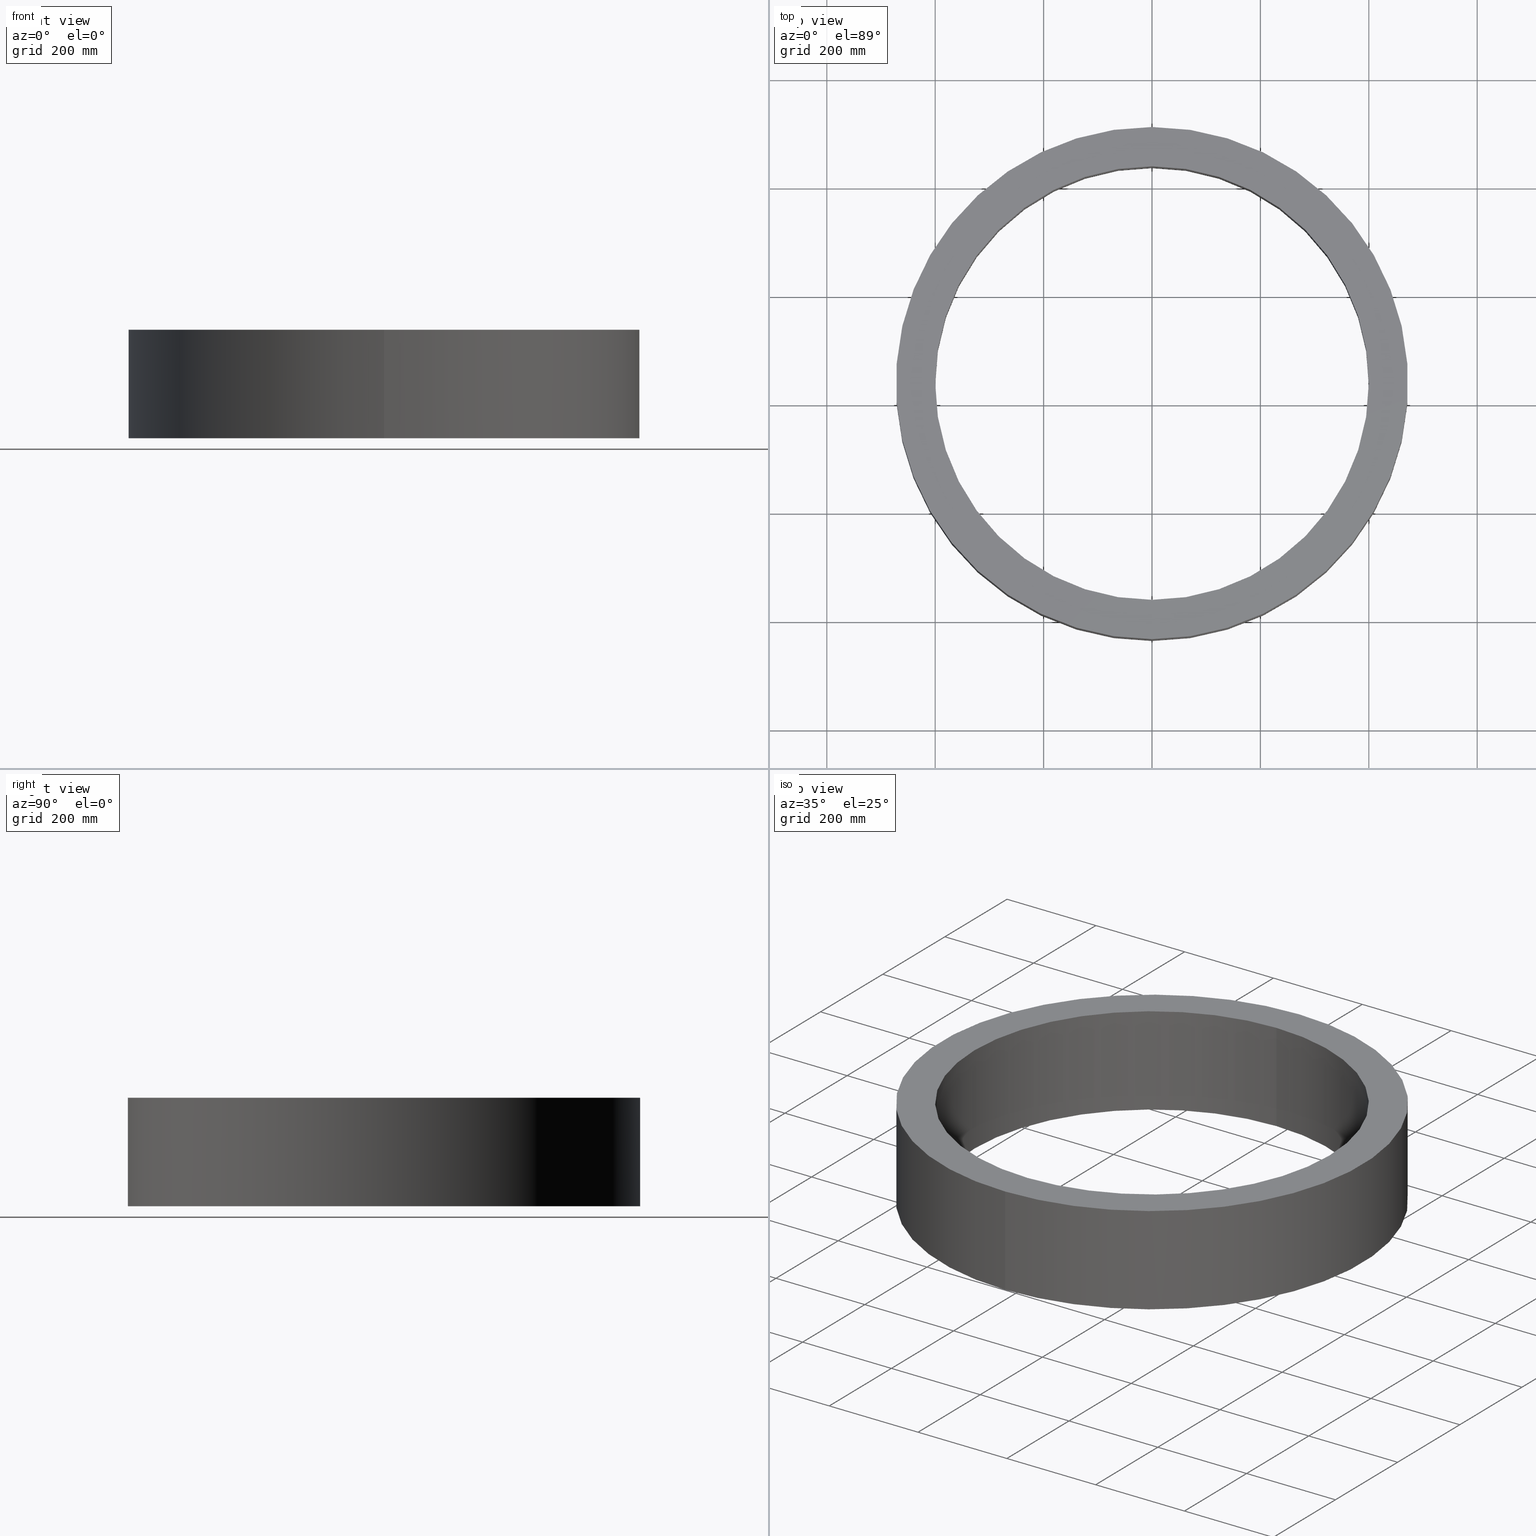
[diagram: canonical four-view strip — front | top / right | iso, engineering-drawing reading convention]
A machine part, canonical four-view strip (front | top / right | iso — engineering-drawing reading convention). The complete STEP part file that produces these views, byte-faithful:
ISO-10303-21;
HEADER;
FILE_DESCRIPTION (( 'STEP AP203' ),
    '1' );
FILE_NAME ('Rudus 6780200 Korotusrengas kaukol�mp� 800x200.step',
    '2020-03-16T06:44:18',
    ( '' ),
    ( '' ),
    'SwSTEP 2.0',
    'SolidWorks 2019',
    '' );
FILE_SCHEMA (( 'CONFIG_CONTROL_DESIGN' ));
ENDSEC;

DATA;
#1 = DIRECTION ( 'NONE',  ( 1.000000000000000000, 0.0000000000000000000, 0.0000000000000000000 ) ) ;
#2 = VECTOR ( 'NONE', #161, 1000.000000000000000 ) ;
#3 = PERSON_AND_ORGANIZATION ( #156, #248 ) ;
#4 = CC_DESIGN_PERSON_AND_ORGANIZATION_ASSIGNMENT ( #135, #226, ( #209 ) ) ;
#5 = COORDINATED_UNIVERSAL_TIME_OFFSET ( 2, 0, .AHEAD. ) ;
#6 = SHAPE_REPRESENTATION ( 'Rudus 6780200 Korotusrengas kaukol�mp� 800x200', ( #220, #240 ), #9 ) ;
#7 = FACE_OUTER_BOUND ( 'NONE', #109, .T. ) ;
#8 = PERSON_AND_ORGANIZATION ( #139, #148 ) ;
#9 =( GEOMETRIC_REPRESENTATION_CONTEXT ( 3 ) GLOBAL_UNCERTAINTY_ASSIGNED_CONTEXT ( ( #190 ) ) GLOBAL_UNIT_ASSIGNED_CONTEXT ( ( #281, #130, #314 ) ) REPRESENTATION_CONTEXT ( 'NONE', 'WORKASPACE' ) );
#10 = FACE_OUTER_BOUND ( 'NONE', #126, .T. ) ;
#11 = DIRECTION ( 'NONE',  ( 0.0000000000000000000, 0.0000000000000000000, 1.000000000000000000 ) ) ;
#12 = CARTESIAN_POINT ( 'NONE',  ( 4.898587196589412868E-14, 0.0000000000000000000, 400.0000000000000000 ) ) ;
#13 = ADVANCED_FACE ( 'NONE', ( #7 ), #356, .T. ) ;
#14 = DIRECTION ( 'NONE',  ( 0.0000000000000000000, 0.0000000000000000000, 1.000000000000000000 ) ) ;
#15 = LOCAL_TIME ( 8, 44, 18.00000000000000000, #55 ) ;
#16 = SECURITY_CLASSIFICATION ( '', '', #52 ) ;
#17 = APPROVAL_ROLE ( '' ) ;
#18 = CARTESIAN_POINT ( 'NONE',  ( 0.0000000000000000000, -161.7731247645711790, 0.0000000000000000000 ) ) ;
#19 = ORIENTED_EDGE ( 'NONE', *, *, #120, .F. ) ;
#20 = ORIENTED_EDGE ( 'NONE', *, *, #211, .T. ) ;
#21 = AXIS2_PLACEMENT_3D ( 'NONE', #56, #182, #358 ) ;
#22 = LINE ( 'NONE', #337, #154 ) ;
#23 = PERSON_AND_ORGANIZATION_ROLE ( 'creator' ) ;
#24 = CALENDAR_DATE ( 2020, 16, 3 ) ;
#25 = DATE_TIME_ROLE ( 'classification_date' ) ;
#26 = APPROVAL_STATUS ( 'not_yet_approved' ) ;
#27 = LOCAL_TIME ( 8, 44, 18.00000000000000000, #345 ) ;
#28 = COORDINATED_UNIVERSAL_TIME_OFFSET ( 2, 0, .AHEAD. ) ;
#29 = CARTESIAN_POINT ( 'NONE',  ( 0.0000000000000000000, 0.0000000000000000000, 0.0000000000000000000 ) ) ;
#30 = APPLICATION_PROTOCOL_DEFINITION ( 'international standard', 'config_control_design', 1994, #313 ) ;
#31 = CC_DESIGN_DATE_AND_TIME_ASSIGNMENT ( #82, #171, ( #223 ) ) ;
#32 = DIRECTION ( 'NONE',  ( -0.0000000000000000000, -1.000000000000000000, -0.0000000000000000000 ) ) ;
#33 = CARTESIAN_POINT ( 'NONE',  ( 0.0000000000000000000, 0.0000000000000000000, -400.0000000000000000 ) ) ;
#34 = FACE_OUTER_BOUND ( 'NONE', #170, .T. ) ;
#35 = EDGE_CURVE ( 'NONE', #194, #213, #77, .T. ) ;
#36 = CIRCLE ( 'NONE', #149, 472.5000000000000568 ) ;
#37 = LOCAL_TIME ( 8, 44, 18.00000000000000000, #28 ) ;
#38 = CC_DESIGN_DATE_AND_TIME_ASSIGNMENT ( #187, #357, ( #292 ) ) ;
#39 = VERTEX_POINT ( 'NONE', #303 ) ;
#40 = FACE_BOUND ( 'NONE', #359, .T. ) ;
#41 = CIRCLE ( 'NONE', #290, 472.5000000000000568 ) ;
#42 =( GEOMETRIC_REPRESENTATION_CONTEXT ( 3 ) GLOBAL_UNCERTAINTY_ASSIGNED_CONTEXT ( ( #335 ) ) GLOBAL_UNIT_ASSIGNED_CONTEXT ( ( #338, #80, #203 ) ) REPRESENTATION_CONTEXT ( 'NONE', 'WORKASPACE' ) );
#43 = CARTESIAN_POINT ( 'NONE',  ( 0.0000000000000000000, 200.0000000000000000, -400.0000000000000000 ) ) ;
#44 = DATE_AND_TIME ( #259, #308 ) ;
#45 = APPROVAL ( #112, 'UNSPECIFIED' ) ;
#46 = COORDINATED_UNIVERSAL_TIME_OFFSET ( 2, 0, .AHEAD. ) ;
#47 = AXIS2_PLACEMENT_3D ( 'NONE', #261, #207, #294 ) ;
#48 = PERSON_AND_ORGANIZATION ( #156, #248 ) ;
#49 = PRODUCT_DEFINITION_SHAPE ( 'NONE', 'NONE',  #244 ) ;
#50 = ORIENTED_EDGE ( 'NONE', *, *, #218, .F. ) ;
#51 = COORDINATED_UNIVERSAL_TIME_OFFSET ( 2, 0, .AHEAD. ) ;
#52 = SECURITY_CLASSIFICATION_LEVEL ( 'unclassified' ) ;
#53 = LOCAL_TIME ( 8, 44, 18.00000000000000000, #46 ) ;
#54 = ITEM_DEFINED_TRANSFORMATION ( 'NONE', 'NONE', #240,  #320 ) ;
#55 = COORDINATED_UNIVERSAL_TIME_OFFSET ( 2, 0, .AHEAD. ) ;
#56 = CARTESIAN_POINT ( 'NONE',  ( 0.0000000000000000000, 200.0000000000000000, 0.0000000000000000000 ) ) ;
#57 = CC_DESIGN_APPROVAL ( #317, ( #292 ) ) ;
#58 = CARTESIAN_POINT ( 'NONE',  ( 0.0000000000000000000, 200.0000000000000000, 0.0000000000000000000 ) ) ;
#59 = ADVANCED_FACE ( 'NONE', ( #34 ), #271, .F. ) ;
#60 = AXIS2_PLACEMENT_3D ( 'NONE', #352, #205, #231 ) ;
#61 = DIRECTION ( 'NONE',  ( 0.0000000000000000000, 0.0000000000000000000, -1.000000000000000000 ) ) ;
#62 = CC_DESIGN_PERSON_AND_ORGANIZATION_ASSIGNMENT ( #76, #74, ( #223 ) ) ;
#63 = VERTEX_POINT ( 'NONE', #12 ) ;
#64 = ORIENTED_EDGE ( 'NONE', *, *, #278, .T. ) ;
#65 = EDGE_CURVE ( 'NONE', #339, #217, #36, .T. ) ;
#66 = DIRECTION ( 'NONE',  ( -0.0000000000000000000, -1.000000000000000000, -0.0000000000000000000 ) ) ;
#67 = CC_DESIGN_PERSON_AND_ORGANIZATION_ASSIGNMENT ( #360, #147, ( #292 ) ) ;
#68 = DIRECTION ( 'NONE',  ( 0.0000000000000000000, 0.0000000000000000000, 1.000000000000000000 ) ) ;
#69 = ORIENTED_EDGE ( 'NONE', *, *, #136, .T. ) ;
#70 = DIRECTION ( 'NONE',  ( -0.0000000000000000000, -1.000000000000000000, -0.0000000000000000000 ) ) ;
#71 = VECTOR ( 'NONE', #32, 1000.000000000000000 ) ;
#72 = CC_DESIGN_APPROVAL ( #137, ( #272 ) ) ;
#73 = DESIGN_CONTEXT ( 'detailed design', #354, 'design' ) ;
#74 = PERSON_AND_ORGANIZATION_ROLE ( 'creator' ) ;
#75 = PERSON_AND_ORGANIZATION ( #156, #248 ) ;
#76 = PERSON_AND_ORGANIZATION ( #156, #248 ) ;
#77 = CIRCLE ( 'NONE', #350, 400.0000000000000000 ) ;
#78 = CIRCLE ( 'NONE', #47, 400.0000000000000000 ) ;
#79 = APPROVAL_ROLE ( '' ) ;
#80 =( NAMED_UNIT ( * ) PLANE_ANGLE_UNIT ( ) SI_UNIT ( $, .RADIAN. ) );
#81 = DIRECTION ( 'NONE',  ( 0.0000000000000000000, 0.0000000000000000000, -1.000000000000000000 ) ) ;
#82 = DATE_AND_TIME ( #229, #105 ) ;
#83 = CALENDAR_DATE ( 2020, 16, 3 ) ;
#84 = CIRCLE ( 'NONE', #121, 472.5000000000000568 ) ;
#85 = CC_DESIGN_SECURITY_CLASSIFICATION ( #16, ( #243 ) ) ;
#86 = DATE_AND_TIME ( #119, #15 ) ;
#87 = DIRECTION ( 'NONE',  ( 0.0000000000000000000, 0.0000000000000000000, 1.000000000000000000 ) ) ;
#88 = DIRECTION ( 'NONE',  ( 0.0000000000000000000, 0.0000000000000000000, 1.000000000000000000 ) ) ;
#89 = APPROVAL_DATE_TIME ( #268, #317 ) ;
#90 = DIRECTION ( 'NONE',  ( 0.0000000000000000000, 0.0000000000000000000, -1.000000000000000000 ) ) ;
#91 = CARTESIAN_POINT ( 'NONE',  ( 0.0000000000000000000, 200.0000000000000000, -472.5000000000000568 ) ) ;
#92 = DIRECTION ( 'NONE',  ( -0.0000000000000000000, -1.000000000000000000, -0.0000000000000000000 ) ) ;
#93 = APPROVAL_ROLE ( '' ) ;
#94 = APPROVAL ( #134, 'UNSPECIFIED' ) ;
#95 = DIRECTION ( 'NONE',  ( 1.000000000000000000, 0.0000000000000000000, 0.0000000000000000000 ) ) ;
#96 = COORDINATED_UNIVERSAL_TIME_OFFSET ( 2, 0, .AHEAD. ) ;
#97 = MANIFOLD_SOLID_BREP ( 'Boss-Extrude-rengas', #162 ) ;
#98 = APPROVAL_PERSON_ORGANIZATION ( #198, #175, #79 ) ;
#99 = VERTEX_POINT ( 'NONE', #33 ) ;
#100 = CARTESIAN_POINT ( 'NONE',  ( 5.786456125971244586E-14, 0.0000000000000000000, 472.5000000000000568 ) ) ;
#101 = EDGE_LOOP ( 'NONE', ( #234, #334 ) ) ;
#102 = EDGE_CURVE ( 'NONE', #213, #194, #306, .T. ) ;
#103 = ADVANCED_FACE ( 'NONE', ( #10 ), #361, .T. ) ;
#104 = APPLICATION_PROTOCOL_DEFINITION ( 'international standard', 'config_control_design', 1994, #324 ) ;
#105 = LOCAL_TIME ( 8, 44, 18.00000000000000000, #232 ) ;
#106 = PERSON_AND_ORGANIZATION ( #156, #248 ) ;
#107 = APPROVAL_STATUS ( 'not_yet_approved' ) ;
#108 = CC_DESIGN_PERSON_AND_ORGANIZATION_ASSIGNMENT ( #166, #254, ( #243 ) ) ;
#109 = EDGE_LOOP ( 'NONE', ( #224, #20, #246, #19 ) ) ;
#110 = PERSON_AND_ORGANIZATION ( #156, #248 ) ;
#111 = CALENDAR_DATE ( 2020, 16, 3 ) ;
#112 = APPROVAL_STATUS ( 'not_yet_approved' ) ;
#113 = ORIENTED_EDGE ( 'NONE', *, *, #35, .T. ) ;
#114 = PLANE ( 'NONE',  #60 ) ;
#115 = DIRECTION ( 'NONE',  ( 0.0000000000000000000, 1.000000000000000000, 0.0000000000000000000 ) ) ;
#116 = CONTEXT_DEPENDENT_SHAPE_REPRESENTATION ( #343, #332 ) ;
#117 = CARTESIAN_POINT ( 'NONE',  ( 0.0000000000000000000, 0.0000000000000000000, 0.0000000000000000000 ) ) ;
#118 = CC_DESIGN_DATE_AND_TIME_ASSIGNMENT ( #372, #132, ( #244 ) ) ;
#119 = CALENDAR_DATE ( 2020, 16, 3 ) ;
#120 = EDGE_CURVE ( 'NONE', #309, #217, #297, .T. ) ;
#121 = AXIS2_PLACEMENT_3D ( 'NONE', #158, #250, #277 ) ;
#122 = LOCAL_TIME ( 8, 44, 18.00000000000000000, #96 ) ;
#123 = CARTESIAN_POINT ( 'NONE',  ( 0.0000000000000000000, 200.0000000000000000, 0.0000000000000000000 ) ) ;
#124 = ADVANCED_FACE ( 'NONE', ( #151, #289 ), #178, .T. ) ;
#125 = DIRECTION ( 'NONE',  ( -5.551115123125781470E-17, 1.000000000000000000, 9.244463733058732095E-33 ) ) ;
#126 = EDGE_LOOP ( 'NONE', ( #311, #50, #276, #69 ) ) ;
#127 = APPLICATION_PROTOCOL_DEFINITION ( 'international standard', 'config_control_design', 1994, #354 ) ;
#128 = ORIENTED_EDGE ( 'NONE', *, *, #241, .F. ) ;
#129 = LINE ( 'NONE', #247, #2 ) ;
#130 =( NAMED_UNIT ( * ) PLANE_ANGLE_UNIT ( ) SI_UNIT ( $, .RADIAN. ) );
#131 = CC_DESIGN_PERSON_AND_ORGANIZATION_ASSIGNMENT ( #106, #23, ( #244 ) ) ;
#132 = DATE_TIME_ROLE ( 'creation_date' ) ;
#133 = DIRECTION ( 'NONE',  ( 0.0000000000000000000, 0.0000000000000000000, 1.000000000000000000 ) ) ;
#134 = APPROVAL_STATUS ( 'not_yet_approved' ) ;
#135 = PERSON_AND_ORGANIZATION ( #156, #248 ) ;
#136 = EDGE_CURVE ( 'NONE', #217, #339, #41, .T. ) ;
#137 = APPROVAL ( #107, 'UNSPECIFIED' ) ;
#138 = PERSON_AND_ORGANIZATION_ROLE ( 'classification_officer' ) ;
#139 = PERSON ( 'NAUO-PER1', 'UNSPECIFIED', 'UNSPECIFIED', ('UNSPECIFIED'), ('UNSPECIFIED'), ('UNSPECIFIED') ) ;
#140 = CIRCLE ( 'NONE', #196, 472.5000000000000568 ) ;
#141 = APPROVAL_PERSON_ORGANIZATION ( #202, #137, #322 ) ;
#142 = APPROVAL_DATE_TIME ( #285, #192 ) ;
#143 = MECHANICAL_CONTEXT ( 'NONE', #313, 'mechanical' ) ;
#144 = CARTESIAN_POINT ( 'NONE',  ( 0.0000000000000000000, 0.0000000000000000000, 0.0000000000000000000 ) ) ;
#145 = DIRECTION ( 'NONE',  ( -0.0000000000000000000, -1.000000000000000000, -0.0000000000000000000 ) ) ;
#146 = ORIENTED_EDGE ( 'NONE', *, *, #167, .T. ) ;
#147 = PERSON_AND_ORGANIZATION_ROLE ( 'classification_officer' ) ;
#148 = ORGANIZATION ( 'NAUO-ORG1', 'UNSPECIFIED', 'UNSPECIFIED' ) ;
#149 = AXIS2_PLACEMENT_3D ( 'NONE', #242, #264, #88 ) ;
#150 = CC_DESIGN_PERSON_AND_ORGANIZATION_ASSIGNMENT ( #368, #252, ( #301 ) ) ;
#151 = FACE_OUTER_BOUND ( 'NONE', #245, .T. ) ;
#152 = EDGE_CURVE ( 'NONE', #99, #63, #78, .T. ) ;
#153 = CC_DESIGN_DATE_AND_TIME_ASSIGNMENT ( #86, #333, ( #160 ) ) ;
#154 = VECTOR ( 'NONE', #66, 1000.000000000000000 ) ;
#155 = ORIENTED_EDGE ( 'NONE', *, *, #102, .T. ) ;
#156 = PERSON ( 'UNSPECIFIED', 'UNSPECIFIED', 'UNSPECIFIED', ('UNSPECIFIED'), ('UNSPECIFIED'), ('UNSPECIFIED') ) ;
#157 = ORIENTED_EDGE ( 'NONE', *, *, #136, .F. ) ;
#158 = CARTESIAN_POINT ( 'NONE',  ( 0.0000000000000000000, 200.0000000000000000, 0.0000000000000000000 ) ) ;
#159 = ORIENTED_EDGE ( 'NONE', *, *, #65, .F. ) ;
#160 = SECURITY_CLASSIFICATION ( '', '', #262 ) ;
#161 = DIRECTION ( 'NONE',  ( -0.0000000000000000000, -1.000000000000000000, -0.0000000000000000000 ) ) ;
#162 = CLOSED_SHELL ( 'NONE', ( #349, #13, #124, #341, #103, #59 ) ) ;
#163 = CC_DESIGN_DATE_AND_TIME_ASSIGNMENT ( #204, #25, ( #16 ) ) ;
#164 = CARTESIAN_POINT ( 'NONE',  ( 0.0000000000000000000, 0.0000000000000000000, -472.5000000000000568 ) ) ;
#165 = CC_DESIGN_PERSON_AND_ORGANIZATION_ASSIGNMENT ( #75, #199, ( #272 ) ) ;
#166 = PERSON_AND_ORGANIZATION ( #156, #248 ) ;
#167 = EDGE_CURVE ( 'NONE', #63, #99, #363, .T. ) ;
#168 = PERSON_AND_ORGANIZATION_ROLE ( 'design_supplier' ) ;
#169 = APPROVAL_ROLE ( '' ) ;
#170 = EDGE_LOOP ( 'NONE', ( #128, #113, #64, #184 ) ) ;
#171 = DATE_TIME_ROLE ( 'creation_date' ) ;
#172 = APPROVAL_ROLE ( '' ) ;
#173 = EDGE_CURVE ( 'NONE', #39, #309, #140, .T. ) ;
#174 = APPROVAL_PERSON_ORGANIZATION ( #3, #45, #172 ) ;
#175 = APPROVAL ( #26, 'UNSPECIFIED' ) ;
#176 = CYLINDRICAL_SURFACE ( 'NONE', #307, 400.0000000000000000 ) ;
#177 = PERSON_AND_ORGANIZATION_ROLE ( 'classification_officer' ) ;
#178 = PLANE ( 'NONE',  #183 ) ;
#179 = PERSON_AND_ORGANIZATION ( #156, #248 ) ;
#180 = APPROVAL_ROLE ( '' ) ;
#181 = CC_DESIGN_SECURITY_CLASSIFICATION ( #160, ( #373 ) ) ;
#182 = DIRECTION ( 'NONE',  ( -0.0000000000000000000, -1.000000000000000000, -0.0000000000000000000 ) ) ;
#183 = AXIS2_PLACEMENT_3D ( 'NONE', #260, #238, #258 ) ;
#184 = ORIENTED_EDGE ( 'NONE', *, *, #167, .F. ) ;
#185 = SHAPE_DEFINITION_REPRESENTATION ( #49, #364 ) ;
#186 = ORIENTED_EDGE ( 'NONE', *, *, #173, .T. ) ;
#187 = DATE_AND_TIME ( #235, #197 ) ;
#188 = DIRECTION ( 'NONE',  ( 0.0000000000000000000, 1.000000000000000000, 0.0000000000000000000 ) ) ;
#189 = EDGE_LOOP ( 'NONE', ( #155, #191, #222, #249 ) ) ;
#190 = UNCERTAINTY_MEASURE_WITH_UNIT (LENGTH_MEASURE( 1.000000000000000082E-05 ), #281, 'distance_accuracy_value', 'NONE');
#191 = ORIENTED_EDGE ( 'NONE', *, *, #241, .T. ) ;
#192 = APPROVAL ( #239, 'UNSPECIFIED' ) ;
#193 = CARTESIAN_POINT ( 'NONE',  ( 4.898587196589412868E-14, 200.0000000000000000, 400.0000000000000000 ) ) ;
#194 = VERTEX_POINT ( 'NONE', #193 ) ;
#195 = APPROVAL_PERSON_ORGANIZATION ( #330, #317, #93 ) ;
#196 = AXIS2_PLACEMENT_3D ( 'NONE', #342, #201, #68 ) ;
#197 = LOCAL_TIME ( 8, 44, 18.00000000000000000, #295 ) ;
#198 = PERSON_AND_ORGANIZATION ( #156, #248 ) ;
#199 = PERSON_AND_ORGANIZATION_ROLE ( 'creator' ) ;
#200 = APPLICATION_PROTOCOL_DEFINITION ( 'international standard', 'config_control_design', 1994, #216 ) ;
#201 = DIRECTION ( 'NONE',  ( 0.0000000000000000000, 1.000000000000000000, 0.0000000000000000000 ) ) ;
#202 = PERSON_AND_ORGANIZATION ( #156, #248 ) ;
#203 =( NAMED_UNIT ( * ) SI_UNIT ( $, .STERADIAN. ) SOLID_ANGLE_UNIT ( ) );
#204 = DATE_AND_TIME ( #24, #27 ) ;
#205 = DIRECTION ( 'NONE',  ( 0.0000000000000000000, 1.000000000000000000, 0.0000000000000000000 ) ) ;
#206 = LOCAL_TIME ( 8, 44, 18.00000000000000000, #291 ) ;
#207 = DIRECTION ( 'NONE',  ( 0.0000000000000000000, 1.000000000000000000, 0.0000000000000000000 ) ) ;
#208 = DIRECTION ( 'NONE',  ( 0.0000000000000000000, 0.0000000000000000000, 1.000000000000000000 ) ) ;
#209 = PRODUCT ( 'kaivo-osa-korotusrengas_Kaukol�mp�', 'kaivo-osa-korotusrengas_Kaukol�mp�', '', ( #267 ) ) ;
#210 = CALENDAR_DATE ( 2020, 16, 3 ) ;
#211 = EDGE_CURVE ( 'NONE', #39, #339, #251, .T. ) ;
#212 = APPROVAL_PERSON_ORGANIZATION ( #8, #273, #180 ) ;
#213 = VERTEX_POINT ( 'NONE', #43 ) ;
#214 = DIRECTION ( 'NONE',  ( 0.0000000000000000000, 1.000000000000000000, 0.0000000000000000000 ) ) ;
#215 = APPROVAL_DATE_TIME ( #300, #273 ) ;
#216 = APPLICATION_CONTEXT ( 'configuration controlled 3d designs of mechanical parts and assemblies' ) ;
#217 = VERTEX_POINT ( 'NONE', #164 ) ;
#218 = EDGE_CURVE ( 'NONE', #309, #39, #84, .T. ) ;
#219 = CC_DESIGN_PERSON_AND_ORGANIZATION_ASSIGNMENT ( #8, #177, ( #160 ) ) ;
#220 = AXIS2_PLACEMENT_3D ( 'NONE', #370, #283, #326 ) ;
#221 = DIRECTION ( 'NONE',  ( -1.000000000000000000, -5.551115123125782702E-17, 2.775557561562891351E-16 ) ) ;
#222 = ORIENTED_EDGE ( 'NONE', *, *, #152, .F. ) ;
#223 = PRODUCT_DEFINITION ( 'UNKNOWN', '', #243, #73 ) ;
#224 = ORIENTED_EDGE ( 'NONE', *, *, #173, .F. ) ;
#225 = ADVANCED_BREP_SHAPE_REPRESENTATION ( '', ( #97, #320 ), #42 ) ;
#226 = PERSON_AND_ORGANIZATION_ROLE ( 'design_owner' ) ;
#227 = APPROVAL_PERSON_ORGANIZATION ( #316, #94, #169 ) ;
#228 = DATE_AND_TIME ( #371, #362 ) ;
#229 = CALENDAR_DATE ( 2020, 16, 3 ) ;
#230 = LOCAL_TIME ( 8, 44, 18.00000000000000000, #327 ) ;
#231 = DIRECTION ( 'NONE',  ( 0.0000000000000000000, -0.0000000000000000000, 1.000000000000000000 ) ) ;
#232 = COORDINATED_UNIVERSAL_TIME_OFFSET ( 2, 0, .AHEAD. ) ;
#233 = CALENDAR_DATE ( 2020, 16, 3 ) ;
#234 = ORIENTED_EDGE ( 'NONE', *, *, #102, .F. ) ;
#235 = CALENDAR_DATE ( 2020, 16, 3 ) ;
#236 = SHAPE_REPRESENTATION_RELATIONSHIP ( 'NONE' , 'NONE' ,  #364, #225 ) ;
#237 = FACE_OUTER_BOUND ( 'NONE', #189, .T. ) ;
#238 = DIRECTION ( 'NONE',  ( 0.0000000000000000000, 1.000000000000000000, 0.0000000000000000000 ) ) ;
#239 = APPROVAL_STATUS ( 'not_yet_approved' ) ;
#240 = AXIS2_PLACEMENT_3D ( 'NONE', #18, #125, #221 ) ;
#241 = EDGE_CURVE ( 'NONE', #194, #63, #22, .T. ) ;
#242 = CARTESIAN_POINT ( 'NONE',  ( 0.0000000000000000000, 0.0000000000000000000, 0.0000000000000000000 ) ) ;
#243 = PRODUCT_DEFINITION_FORMATION_WITH_SPECIFIED_SOURCE ( 'ANY', '', #301, .NOT_KNOWN. ) ;
#244 = PRODUCT_DEFINITION ( 'UNKNOWN', '', #272, #315 ) ;
#245 = EDGE_LOOP ( 'NONE', ( #274, #186 ) ) ;
#246 = ORIENTED_EDGE ( 'NONE', *, *, #65, .T. ) ;
#247 = CARTESIAN_POINT ( 'NONE',  ( 0.0000000000000000000, 200.0000000000000000, -400.0000000000000000 ) ) ;
#248 = ORGANIZATION ( 'UNSPECIFIED', 'UNSPECIFIED', '' ) ;
#249 = ORIENTED_EDGE ( 'NONE', *, *, #278, .F. ) ;
#250 = DIRECTION ( 'NONE',  ( 0.0000000000000000000, 1.000000000000000000, 0.0000000000000000000 ) ) ;
#251 = LINE ( 'NONE', #340, #253 ) ;
#252 = PERSON_AND_ORGANIZATION_ROLE ( 'design_owner' ) ;
#253 = VECTOR ( 'NONE', #70, 1000.000000000000000 ) ;
#254 = PERSON_AND_ORGANIZATION_ROLE ( 'design_supplier' ) ;
#255 = CC_DESIGN_APPROVAL ( #45, ( #243 ) ) ;
#256 = APPROVAL_DATE_TIME ( #288, #94 ) ;
#257 = COORDINATED_UNIVERSAL_TIME_OFFSET ( 2, 0, .AHEAD. ) ;
#258 = DIRECTION ( 'NONE',  ( 0.0000000000000000000, -0.0000000000000000000, 1.000000000000000000 ) ) ;
#259 = CALENDAR_DATE ( 2020, 16, 3 ) ;
#260 = CARTESIAN_POINT ( 'NONE',  ( 0.0000000000000000000, 200.0000000000000000, 0.0000000000000000000 ) ) ;
#261 = CARTESIAN_POINT ( 'NONE',  ( 0.0000000000000000000, 0.0000000000000000000, 0.0000000000000000000 ) ) ;
#262 = SECURITY_CLASSIFICATION_LEVEL ( 'unclassified' ) ;
#263 = DIRECTION ( 'NONE',  ( 0.0000000000000000000, 1.000000000000000000, 0.0000000000000000000 ) ) ;
#264 = DIRECTION ( 'NONE',  ( 0.0000000000000000000, 1.000000000000000000, 0.0000000000000000000 ) ) ;
#265 = PRODUCT_DEFINITION_SHAPE ( 'NONE', 'NONE',  #223 ) ;
#266 = APPROVAL_STATUS ( 'not_yet_approved' ) ;
#267 = MECHANICAL_CONTEXT ( 'NONE', #324, 'mechanical' ) ;
#268 = DATE_AND_TIME ( #210, #331 ) ;
#269 = APPROVAL_STATUS ( 'not_yet_approved' ) ;
#270 = PRODUCT_RELATED_PRODUCT_CATEGORY ( 'detail', '', ( #301 ) ) ;
#271 = CYLINDRICAL_SURFACE ( 'NONE', #279, 400.0000000000000000 ) ;
#272 = PRODUCT_DEFINITION_FORMATION_WITH_SPECIFIED_SOURCE ( 'ANY', '', #209, .NOT_KNOWN. ) ;
#273 = APPROVAL ( #269, 'UNKNOWN' ) ;
#274 = ORIENTED_EDGE ( 'NONE', *, *, #218, .T. ) ;
#275 = CC_DESIGN_PERSON_AND_ORGANIZATION_ASSIGNMENT ( #110, #351, ( #243 ) ) ;
#276 = ORIENTED_EDGE ( 'NONE', *, *, #120, .T. ) ;
#277 = DIRECTION ( 'NONE',  ( 0.0000000000000000000, 0.0000000000000000000, 1.000000000000000000 ) ) ;
#278 = EDGE_CURVE ( 'NONE', #213, #99, #129, .T. ) ;
#279 = AXIS2_PLACEMENT_3D ( 'NONE', #286, #145, #90 ) ;
#280 = FACE_OUTER_BOUND ( 'NONE', #310, .T. ) ;
#281 =( LENGTH_UNIT ( ) NAMED_UNIT ( * ) SI_UNIT ( .MILLI., .METRE. ) );
#282 = SHAPE_DEFINITION_REPRESENTATION ( #265, #6 ) ;
#283 = DIRECTION ( 'NONE',  ( 0.0000000000000000000, 0.0000000000000000000, 1.000000000000000000 ) ) ;
#284 = PRODUCT_RELATED_PRODUCT_CATEGORY ( 'detail', '', ( #209 ) ) ;
#285 = DATE_AND_TIME ( #111, #122 ) ;
#286 = CARTESIAN_POINT ( 'NONE',  ( 0.0000000000000000000, 200.0000000000000000, 0.0000000000000000000 ) ) ;
#287 = APPROVAL_DATE_TIME ( #228, #137 ) ;
#288 = DATE_AND_TIME ( #325, #37 ) ;
#289 = FACE_BOUND ( 'NONE', #101, .T. ) ;
#290 = AXIS2_PLACEMENT_3D ( 'NONE', #29, #115, #87 ) ;
#291 = COORDINATED_UNIVERSAL_TIME_OFFSET ( 2, 0, .AHEAD. ) ;
#292 = SECURITY_CLASSIFICATION ( '', '', #347 ) ;
#293 = CARTESIAN_POINT ( 'NONE',  ( 0.0000000000000000000, 200.0000000000000000, 0.0000000000000000000 ) ) ;
#294 = DIRECTION ( 'NONE',  ( 0.0000000000000000000, 0.0000000000000000000, 1.000000000000000000 ) ) ;
#295 = COORDINATED_UNIVERSAL_TIME_OFFSET ( 2, 0, .AHEAD. ) ;
#296 = CARTESIAN_POINT ( 'NONE',  ( 0.0000000000000000000, 200.0000000000000000, 0.0000000000000000000 ) ) ;
#297 = LINE ( 'NONE', #91, #71 ) ;
#298 = AXIS2_PLACEMENT_3D ( 'NONE', #296, #214, #208 ) ;
#299 = APPROVAL_PERSON_ORGANIZATION ( #179, #192, #17 ) ;
#300 = DATE_AND_TIME ( #83, #230 ) ;
#301 = PRODUCT ( 'Rudus 6780200 Korotusrengas kaukol�mp� 800x200', 'Rudus 6780200 Korotusrengas kaukol�mp� 800x200', '', ( #143 ) ) ;
#302 = CC_DESIGN_PERSON_AND_ORGANIZATION_ASSIGNMENT ( #48, #138, ( #16 ) ) ;
#303 = CARTESIAN_POINT ( 'NONE',  ( 5.786456125971244586E-14, 200.0000000000000000, 472.5000000000000568 ) ) ;
#304 = CC_DESIGN_PERSON_AND_ORGANIZATION_ASSIGNMENT ( #318, #168, ( #272 ) ) ;
#305 = DIRECTION ( 'NONE',  ( 0.0000000000000000000, 0.0000000000000000000, 1.000000000000000000 ) ) ;
#306 = CIRCLE ( 'NONE', #298, 400.0000000000000000 ) ;
#307 = AXIS2_PLACEMENT_3D ( 'NONE', #293, #355, #81 ) ;
#308 = LOCAL_TIME ( 8, 44, 18.00000000000000000, #257 ) ;
#309 = VERTEX_POINT ( 'NONE', #365 ) ;
#310 = EDGE_LOOP ( 'NONE', ( #157, #159 ) ) ;
#311 = ORIENTED_EDGE ( 'NONE', *, *, #211, .F. ) ;
#312 = CC_DESIGN_APPROVAL ( #175, ( #244 ) ) ;
#313 = APPLICATION_CONTEXT ( 'configuration controlled 3d designs of mechanical parts and assemblies' ) ;
#314 =( NAMED_UNIT ( * ) SI_UNIT ( $, .STERADIAN. ) SOLID_ANGLE_UNIT ( ) );
#315 = DESIGN_CONTEXT ( 'detailed design', #216, 'design' ) ;
#316 = PERSON_AND_ORGANIZATION ( #156, #248 ) ;
#317 = APPROVAL ( #266, 'UNSPECIFIED' ) ;
#318 = PERSON_AND_ORGANIZATION ( #156, #248 ) ;
#319 = AXIS2_PLACEMENT_3D ( 'NONE', #58, #92, #61 ) ;
#320 = AXIS2_PLACEMENT_3D ( 'NONE', #117, #11, #1 ) ;
#321 = APPROVAL_DATE_TIME ( #367, #45 ) ;
#322 = APPROVAL_ROLE ( '' ) ;
#323 = CARTESIAN_POINT ( 'NONE',  ( 0.0000000000000000000, 0.0000000000000000000, 0.0000000000000000000 ) ) ;
#324 = APPLICATION_CONTEXT ( 'configuration controlled 3d designs of mechanical parts and assemblies' ) ;
#325 = CALENDAR_DATE ( 2020, 16, 3 ) ;
#326 = DIRECTION ( 'NONE',  ( 1.000000000000000000, 0.0000000000000000000, 0.0000000000000000000 ) ) ;
#327 = COORDINATED_UNIVERSAL_TIME_OFFSET ( 2, 0, .AHEAD. ) ;
#328 = AXIS2_PLACEMENT_3D ( 'NONE', #144, #263, #133 ) ;
#329 = CC_DESIGN_APPROVAL ( #94, ( #16 ) ) ;
#330 = PERSON_AND_ORGANIZATION ( #156, #248 ) ;
#331 = LOCAL_TIME ( 8, 44, 18.00000000000000000, #5 ) ;
#332 = PRODUCT_DEFINITION_SHAPE ( 'NONE', 'NONE',  #373 ) ;
#333 = DATE_TIME_ROLE ( 'classification_date' ) ;
#334 = ORIENTED_EDGE ( 'NONE', *, *, #35, .F. ) ;
#335 = UNCERTAINTY_MEASURE_WITH_UNIT (LENGTH_MEASURE( 1.000000000000000082E-05 ), #338, 'distance_accuracy_value', 'NONE');
#336 = ORIENTED_EDGE ( 'NONE', *, *, #152, .T. ) ;
#337 = CARTESIAN_POINT ( 'NONE',  ( 4.898587196589412868E-14, 200.0000000000000000, 400.0000000000000000 ) ) ;
#338 =( LENGTH_UNIT ( ) NAMED_UNIT ( * ) SI_UNIT ( .MILLI., .METRE. ) );
#339 = VERTEX_POINT ( 'NONE', #100 ) ;
#340 = CARTESIAN_POINT ( 'NONE',  ( 5.786456125971244586E-14, 200.0000000000000000, 472.5000000000000568 ) ) ;
#341 = ADVANCED_FACE ( 'NONE', ( #280, #40 ), #114, .F. ) ;
#342 = CARTESIAN_POINT ( 'NONE',  ( 0.0000000000000000000, 200.0000000000000000, 0.0000000000000000000 ) ) ;
#343 =( REPRESENTATION_RELATIONSHIP ('NONE','NONE', #6, #364 ) REPRESENTATION_RELATIONSHIP_WITH_TRANSFORMATION ( #54 )SHAPE_REPRESENTATION_RELATIONSHIP( ) );
#344 = AXIS2_PLACEMENT_3D ( 'NONE', #323, #305, #95 ) ;
#345 = COORDINATED_UNIVERSAL_TIME_OFFSET ( 2, 0, .AHEAD. ) ;
#346 = APPROVAL_DATE_TIME ( #44, #175 ) ;
#347 = SECURITY_CLASSIFICATION_LEVEL ( 'unclassified' ) ;
#348 = CC_DESIGN_SECURITY_CLASSIFICATION ( #292, ( #272 ) ) ;
#349 = ADVANCED_FACE ( 'NONE', ( #237 ), #176, .F. ) ;
#350 = AXIS2_PLACEMENT_3D ( 'NONE', #123, #188, #14 ) ;
#351 = PERSON_AND_ORGANIZATION_ROLE ( 'creator' ) ;
#352 = CARTESIAN_POINT ( 'NONE',  ( 0.0000000000000000000, 0.0000000000000000000, 0.0000000000000000000 ) ) ;
#353 = CALENDAR_DATE ( 2020, 16, 3 ) ;
#354 = APPLICATION_CONTEXT ( 'configuration controlled 3d designs of mechanical parts and assemblies' ) ;
#355 = DIRECTION ( 'NONE',  ( -0.0000000000000000000, -1.000000000000000000, -0.0000000000000000000 ) ) ;
#356 = CYLINDRICAL_SURFACE ( 'NONE', #319, 472.5000000000000568 ) ;
#357 = DATE_TIME_ROLE ( 'classification_date' ) ;
#358 = DIRECTION ( 'NONE',  ( 0.0000000000000000000, 0.0000000000000000000, -1.000000000000000000 ) ) ;
#359 = EDGE_LOOP ( 'NONE', ( #336, #146 ) ) ;
#360 = PERSON_AND_ORGANIZATION ( #156, #248 ) ;
#361 = CYLINDRICAL_SURFACE ( 'NONE', #21, 472.5000000000000568 ) ;
#362 = LOCAL_TIME ( 8, 44, 18.00000000000000000, #51 ) ;
#363 = CIRCLE ( 'NONE', #328, 400.0000000000000000 ) ;
#364 = SHAPE_REPRESENTATION ( 'kaivo-osa-korotusrengas_Kaukol�mp�', ( #320 ), #42 ) ;
#365 = CARTESIAN_POINT ( 'NONE',  ( 0.0000000000000000000, 200.0000000000000000, -472.5000000000000568 ) ) ;
#366 = CC_DESIGN_APPROVAL ( #273, ( #160 ) ) ;
#367 = DATE_AND_TIME ( #353, #206 ) ;
#368 = PERSON_AND_ORGANIZATION ( #156, #248 ) ;
#369 = CC_DESIGN_APPROVAL ( #192, ( #223 ) ) ;
#370 = CARTESIAN_POINT ( 'NONE',  ( 0.0000000000000000000, 0.0000000000000000000, 0.0000000000000000000 ) ) ;
#371 = CALENDAR_DATE ( 2020, 16, 3 ) ;
#372 = DATE_AND_TIME ( #233, #53 ) ;
#373 = NEXT_ASSEMBLY_USAGE_OCCURRENCE ( 'NAUO1', ' ', ' ', #223, #244, $ ) ;
ENDSEC;
END-ISO-10303-21;
